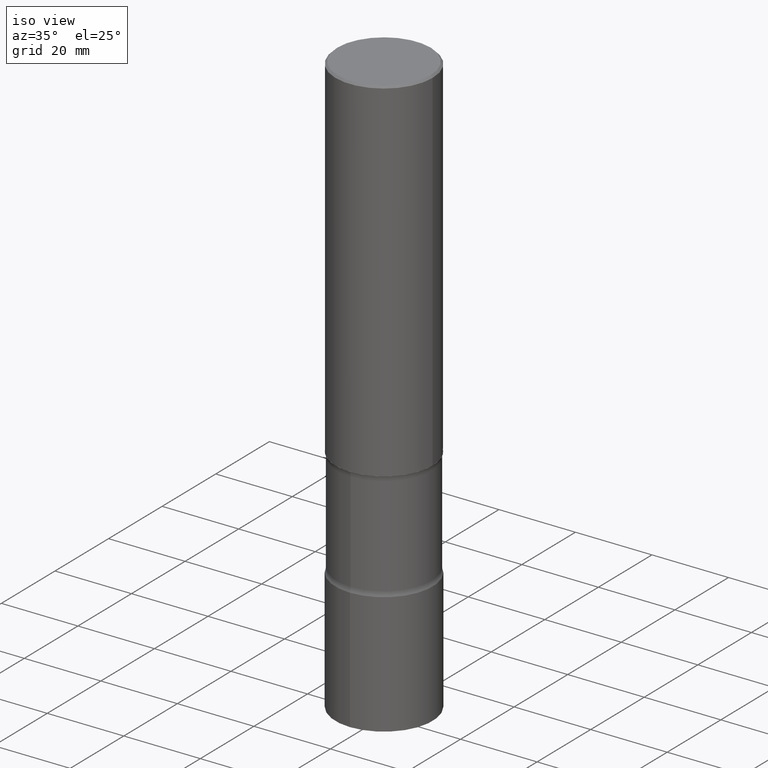
[diagram: clean part render]
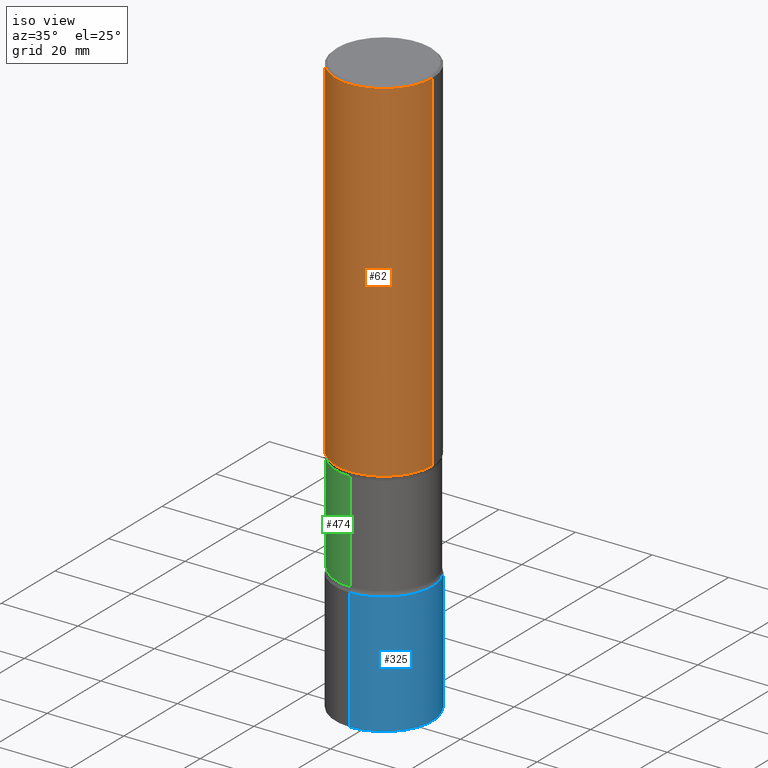
[diagram: same view with three faces highlighted in distinct colors, each labeled with its STEP entity id]
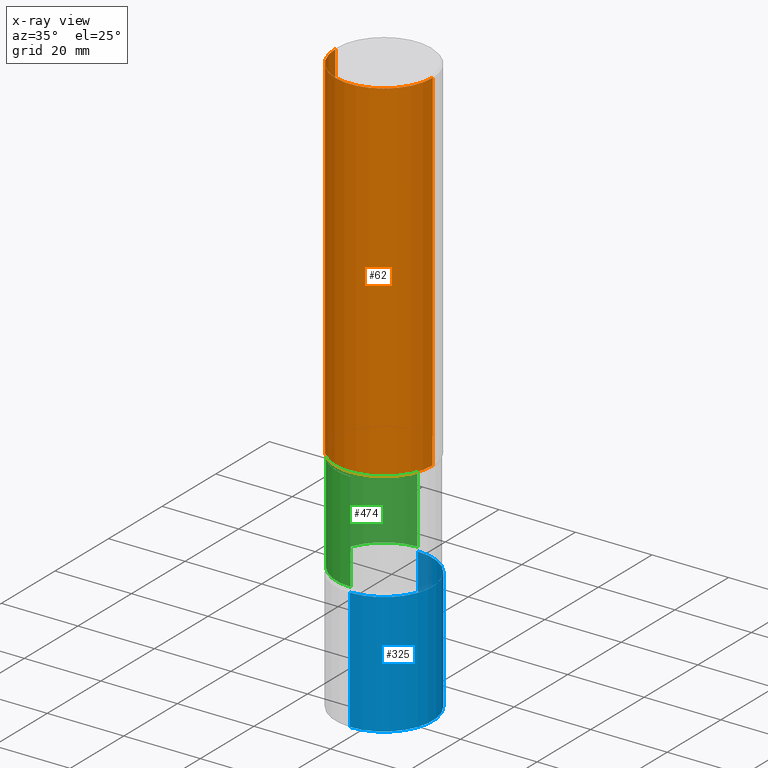
[diagram: x-ray of the same camera — body ghosted, the three highlighted faces saturated]
A machine part, iso view with three faces highlighted in distinct colors.
The next image is the same camera in x-ray (body ghosted, the three faces saturated) — at least one of them is partly hidden behind the body in this view.
Their STEP definitions:

[orange] entity #62 — the highlighted cylindrical surface (partial cylindrical patch) has radius 12.7 mm, axis along (-0, 0, 1).
#46 = ORIENTED_EDGE ( 'NONE', *, *, #100, .F. ) ;
#62 = ADVANCED_FACE ( 'NONE', ( #254 ), #105, .T. ) ;
#71 = CARTESIAN_POINT ( 'NONE',  ( 8.864824422421122405E-29, -1.265661985330640574E-14, -3.625000000000000888 ) ) ;
#75 = CIRCLE ( 'NONE', #360, 0.5000000000000000000 ) ;
#96 = CARTESIAN_POINT ( 'NONE',  ( 0.5000000000000000000, -1.614810119214954068E-14, -3.625000000000000888 ) ) ;
#100 = EDGE_CURVE ( 'NONE', #329, #197, #203, .T. ) ;
#105 = CYLINDRICAL_SURFACE ( 'NONE', #163, 0.4999999999999997780 ) ;
#130 = CARTESIAN_POINT ( 'NONE',  ( 0.4999999999999997780, -3.491481338843131778E-15, 2.438088387897966775E-29 ) ) ;
#141 = LINE ( 'NONE', #296, #471 ) ;
#143 = CARTESIAN_POINT ( 'NONE',  ( 0.000000000000000000, 0.000000000000000000, 0.000000000000000000 ) ) ;
#153 = ORIENTED_EDGE ( 'NONE', *, *, #414, .F. ) ;
#163 = AXIS2_PLACEMENT_3D ( 'NONE', #143, #251, #286 ) ;
#164 = VERTEX_POINT ( 'NONE', #181 ) ;
#167 = ORIENTED_EDGE ( 'NONE', *, *, #241, .T. ) ;
#181 = CARTESIAN_POINT ( 'NONE',  ( -0.5000000000000000000, -2.810511061241131620E-15, -3.625000000000000888 ) ) ;
#187 = DIRECTION ( 'NONE',  ( -2.445468806185136597E-29, 3.491481338843145583E-15, 1.000000000000000000 ) ) ;
#197 = VERTEX_POINT ( 'NONE', #372 ) ;
#203 = CIRCLE ( 'NONE', #277, 0.4999999999999996114 ) ;
#210 = CARTESIAN_POINT ( 'NONE',  ( -0.4999999999999996114, 3.421651712066267296E-15, -0.02000000000000006981 ) ) ;
#241 = EDGE_CURVE ( 'NONE', #478, #197, #268, .T. ) ;
#251 = DIRECTION ( 'NONE',  ( -2.445468806185136597E-29, 3.491481338843145583E-15, 1.000000000000000000 ) ) ;
#254 = FACE_OUTER_BOUND ( 'NONE', #265, .T. ) ;
#255 = DIRECTION ( 'NONE',  ( -2.445468806185136877E-29, 3.491481338843145188E-15, 1.000000000000000000 ) ) ;
#265 = EDGE_LOOP ( 'NONE', ( #153, #314, #167, #46 ) ) ;
#268 = LINE ( 'NONE', #130, #480 ) ;
#277 = AXIS2_PLACEMENT_3D ( 'NONE', #494, #383, #499 ) ;
#286 = DIRECTION ( 'NONE',  ( 1.000000000000000000, -6.982962677686266711E-15, 4.876176775795935793E-29 ) ) ;
#296 = CARTESIAN_POINT ( 'NONE',  ( -0.4999999999999997780, 3.552713678800499352E-15, -2.459467545127452050E-29 ) ) ;
#314 = ORIENTED_EDGE ( 'NONE', *, *, #436, .T. ) ;
#329 = VERTEX_POINT ( 'NONE', #210 ) ;
#337 = DIRECTION ( 'NONE',  ( 1.000000000000000000, -6.982962677686266711E-15, 0.000000000000000000 ) ) ;
#360 = AXIS2_PLACEMENT_3D ( 'NONE', #71, #187, #337 ) ;
#372 = CARTESIAN_POINT ( 'NONE',  ( 0.4999999999999996114, -3.500078625662626318E-15, -0.02000000000000006981 ) ) ;
#383 = DIRECTION ( 'NONE',  ( -2.445468806185136597E-29, 3.491481338843145583E-15, 1.000000000000000000 ) ) ;
#414 = EDGE_CURVE ( 'NONE', #164, #329, #141, .T. ) ;
#429 = DIRECTION ( 'NONE',  ( -2.445468806185136877E-29, 3.491481338843145188E-15, 1.000000000000000000 ) ) ;
#436 = EDGE_CURVE ( 'NONE', #164, #478, #75, .T. ) ;
#471 = VECTOR ( 'NONE', #255, 39.37007874015748143 ) ;
#478 = VERTEX_POINT ( 'NONE', #96 ) ;
#480 = VECTOR ( 'NONE', #429, 39.37007874015748143 ) ;
#494 = CARTESIAN_POINT ( 'NONE',  ( 4.890937612370289799E-31, -6.982962677686315028E-17, -0.02000000000000006981 ) ) ;
#499 = DIRECTION ( 'NONE',  ( 1.000000000000000000, -6.982962677686266711E-15, 0.000000000000000000 ) ) ;

[blue] entity #325 — the highlighted cylindrical surface (partial cylindrical patch) has radius 12.7 mm, axis along (-0, 0, 1).
#14 = CARTESIAN_POINT ( 'NONE',  ( 3.552713678800631091E-15, 0.4999999999999790168, -6.000000000000002665 ) ) ;
#16 = ORIENTED_EDGE ( 'NONE', *, *, #339, .T. ) ;
#19 = LINE ( 'NONE', #415, #420 ) ;
#21 = CYLINDRICAL_SURFACE ( 'NONE', #155, 0.5000000000000001110 ) ;
#36 = EDGE_CURVE ( 'NONE', #200, #465, #215, .T. ) ;
#59 = CARTESIAN_POINT ( 'NONE',  ( -3.491481338842986233E-15, -0.5000000000000209832, -5.999999999999998224 ) ) ;
#66 = AXIS2_PLACEMENT_3D ( 'NONE', #437, #91, #243 ) ;
#70 = DIRECTION ( 'NONE',  ( -2.444607917511519707E-29, 3.492714180422504382E-15, 1.000000000000000000 ) ) ;
#83 = CARTESIAN_POINT ( 'NONE',  ( 3.552713678800647657E-15, 0.4999999999999835132, -4.750000000000001776 ) ) ;
#91 = DIRECTION ( 'NONE',  ( -2.444607917511519987E-29, 3.492714180422504776E-15, 1.000000000000000000 ) ) ;
#107 = AXIS2_PLACEMENT_3D ( 'NONE', #331, #455, #290 ) ;
#138 = VECTOR ( 'NONE', #452, 39.37007874015748143 ) ;
#155 = AXIS2_PLACEMENT_3D ( 'NONE', #497, #301, #180 ) ;
#180 = DIRECTION ( 'NONE',  ( -6.982962677686265133E-15, -1.000000000000000000, 3.492714180422504382E-15 ) ) ;
#200 = VERTEX_POINT ( 'NONE', #59 ) ;
#202 = EDGE_CURVE ( 'NONE', #357, #267, #501, .T. ) ;
#215 = CIRCLE ( 'NONE', #66, 0.5000000000000000000 ) ;
#243 = DIRECTION ( 'NONE',  ( -6.982962677686265922E-15, -1.000000000000000000, 4.370956789862821150E-15 ) ) ;
#267 = VERTEX_POINT ( 'NONE', #83 ) ;
#280 = ORIENTED_EDGE ( 'NONE', *, *, #438, .F. ) ;
#287 = FACE_OUTER_BOUND ( 'NONE', #371, .T. ) ;
#288 = CARTESIAN_POINT ( 'NONE',  ( -3.491481338843133355E-15, -0.5000000000000001110, 1.746357090211252585E-15 ) ) ;
#290 = DIRECTION ( 'NONE',  ( -6.982962677686265922E-15, -1.000000000000000000, 3.278217592397115073E-15 ) ) ;
#301 = DIRECTION ( 'NONE',  ( -2.444607917511519987E-29, 3.492714180422504776E-15, 1.000000000000000000 ) ) ;
#325 = ADVANCED_FACE ( 'NONE', ( #287 ), #21, .T. ) ;
#331 = CARTESIAN_POINT ( 'NONE',  ( 1.161188760817972078E-28, -1.659039235700689818E-14, -4.750000000000000000 ) ) ;
#339 = EDGE_CURVE ( 'NONE', #465, #267, #19, .T. ) ;
#343 = LINE ( 'NONE', #288, #138 ) ;
#357 = VERTEX_POINT ( 'NONE', #495 ) ;
#371 = EDGE_LOOP ( 'NONE', ( #387, #16, #386, #280 ) ) ;
#386 = ORIENTED_EDGE ( 'NONE', *, *, #202, .F. ) ;
#387 = ORIENTED_EDGE ( 'NONE', *, *, #36, .T. ) ;
#415 = CARTESIAN_POINT ( 'NONE',  ( 3.552713678800500929E-15, 0.5000000000000001110, -1.746357090211252585E-15 ) ) ;
#420 = VECTOR ( 'NONE', #70, 39.37007874015748143 ) ;
#437 = CARTESIAN_POINT ( 'NONE',  ( 1.466764750506912217E-28, -2.095628508253502945E-14, -6.000000000000000888 ) ) ;
#438 = EDGE_CURVE ( 'NONE', #200, #357, #343, .T. ) ;
#452 = DIRECTION ( 'NONE',  ( -2.444607917511519707E-29, 3.492714180422504382E-15, 1.000000000000000000 ) ) ;
#455 = DIRECTION ( 'NONE',  ( -2.444607917511519987E-29, 3.492714180422504776E-15, 1.000000000000000000 ) ) ;
#465 = VERTEX_POINT ( 'NONE', #14 ) ;
#495 = CARTESIAN_POINT ( 'NONE',  ( -3.491481338843017787E-15, -0.5000000000000167644, -4.749999999999999112 ) ) ;
#497 = CARTESIAN_POINT ( 'NONE',  ( 0.000000000000000000, 0.000000000000000000, 0.000000000000000000 ) ) ;
#501 = CIRCLE ( 'NONE', #107, 0.5000000000000001110 ) ;

[green] entity #474 — the highlighted cylindrical surface (partial cylindrical patch) has radius 12.446 mm, axis along (0, -0, -1).
#3 = FACE_OUTER_BOUND ( 'NONE', #309, .T. ) ;
#18 = DIRECTION ( 'NONE',  ( 2.601351323791836917E-29, -3.268248701348439037E-15, -1.000000000000000000 ) ) ;
#23 = CIRCLE ( 'NONE', #224, 0.4900000000000001021 ) ;
#25 = CARTESIAN_POINT ( 'NONE',  ( 3.421651712066359198E-15, 0.4899999999999870570, -3.673989794855666791 ) ) ;
#28 = LINE ( 'NONE', #408, #427 ) ;
#32 = CIRCLE ( 'NONE', #445, 0.4900000000000001021 ) ;
#35 = ORIENTED_EDGE ( 'NONE', *, *, #423, .F. ) ;
#41 = VERTEX_POINT ( 'NONE', #72 ) ;
#43 = ORIENTED_EDGE ( 'NONE', *, *, #77, .F. ) ;
#72 = CARTESIAN_POINT ( 'NONE',  ( -3.395946508896822327E-15, -0.4900000000000131473, -3.673989794855663238 ) ) ;
#77 = EDGE_CURVE ( 'NONE', #41, #422, #28, .T. ) ;
#84 = ORIENTED_EDGE ( 'NONE', *, *, #428, .T. ) ;
#85 = CARTESIAN_POINT ( 'NONE',  ( 1.486357676291951426E-28, -2.067570323369244540E-14, -5.999999999999999112 ) ) ;
#94 = VERTEX_POINT ( 'NONE', #25 ) ;
#106 = CARTESIAN_POINT ( 'NONE',  ( 1.148444794047964962E-28, -1.643028152359054986E-14, -4.701010205144336318 ) ) ;
#108 = DIRECTION ( 'NONE',  ( 2.601351323791836917E-29, -3.268248701348439037E-15, -1.000000000000000000 ) ) ;
#109 = DIRECTION ( 'NONE',  ( 6.982962677686266711E-15, 1.000000000000000000, -3.345119992241954342E-15 ) ) ;
#116 = EDGE_CURVE ( 'NONE', #94, #192, #221, .T. ) ;
#133 = DIRECTION ( 'NONE',  ( 6.982962677686266711E-15, 1.000000000000000000, -2.230079994827969693E-15 ) ) ;
#148 = CARTESIAN_POINT ( 'NONE',  ( 8.812807036613977578E-29, -1.307372340140625811E-14, -3.673989794855665014 ) ) ;
#192 = VERTEX_POINT ( 'NONE', #496 ) ;
#218 = CARTESIAN_POINT ( 'NONE',  ( -3.395946508896793533E-15, -0.4900000000000166445, -4.701010205144335430 ) ) ;
#221 = LINE ( 'NONE', #461, #323 ) ;
#222 = DIRECTION ( 'NONE',  ( 2.601351323791836917E-29, -3.268248701348439037E-15, -1.000000000000000000 ) ) ;
#224 = AXIS2_PLACEMENT_3D ( 'NONE', #148, #262, #109 ) ;
#262 = DIRECTION ( 'NONE',  ( 2.601351323791836917E-29, -3.268248701348439037E-15, -1.000000000000000000 ) ) ;
#278 = CYLINDRICAL_SURFACE ( 'NONE', #335, 0.4900000000000001021 ) ;
#309 = EDGE_LOOP ( 'NONE', ( #43, #84, #317, #35 ) ) ;
#317 = ORIENTED_EDGE ( 'NONE', *, *, #116, .T. ) ;
#323 = VECTOR ( 'NONE', #18, 39.37007874015748143 ) ;
#335 = AXIS2_PLACEMENT_3D ( 'NONE', #85, #485, #133 ) ;
#381 = DIRECTION ( 'NONE',  ( 6.982962677686266711E-15, 1.000000000000000000, -3.345119992241954342E-15 ) ) ;
#408 = CARTESIAN_POINT ( 'NONE',  ( -3.361644018907902538E-15, -0.4900000000000208078, -5.999999999999998224 ) ) ;
#422 = VERTEX_POINT ( 'NONE', #218 ) ;
#423 = EDGE_CURVE ( 'NONE', #422, #192, #32, .T. ) ;
#427 = VECTOR ( 'NONE', #108, 39.37007874015748143 ) ;
#428 = EDGE_CURVE ( 'NONE', #41, #94, #23, .T. ) ;
#445 = AXIS2_PLACEMENT_3D ( 'NONE', #106, #222, #381 ) ;
#461 = CARTESIAN_POINT ( 'NONE',  ( 3.421651712066419546E-15, 0.4899999999999793965, -6.000000000000000888 ) ) ;
#474 = ADVANCED_FACE ( 'NONE', ( #3 ), #278, .T. ) ;
#485 = DIRECTION ( 'NONE',  ( 2.601351323791836917E-29, -3.268248701348439037E-15, -1.000000000000000000 ) ) ;
#496 = CARTESIAN_POINT ( 'NONE',  ( 3.421651712066386020E-15, 0.4899999999999836153, -4.701010205144338094 ) ) ;